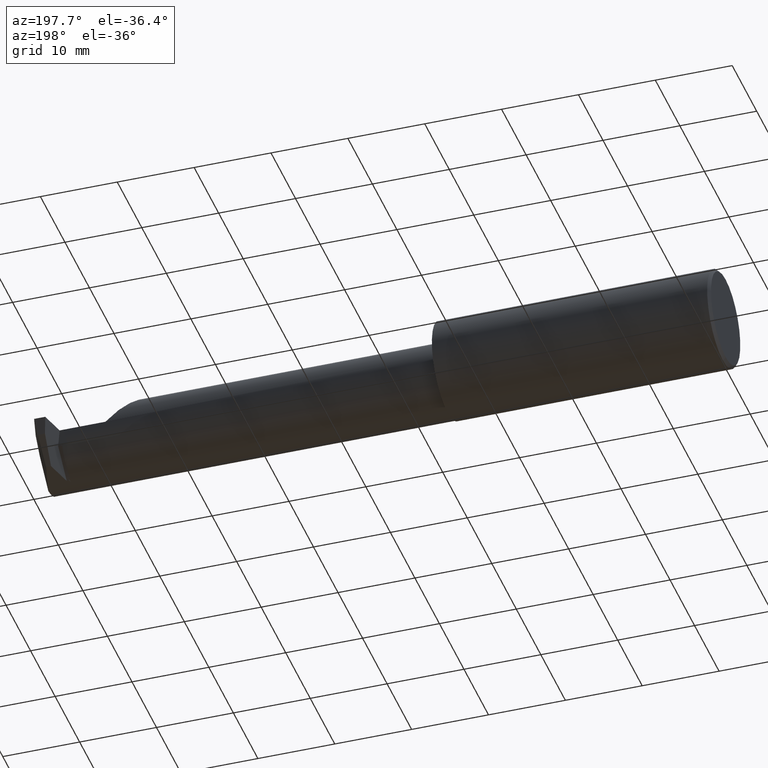
[diagram: clean part render]
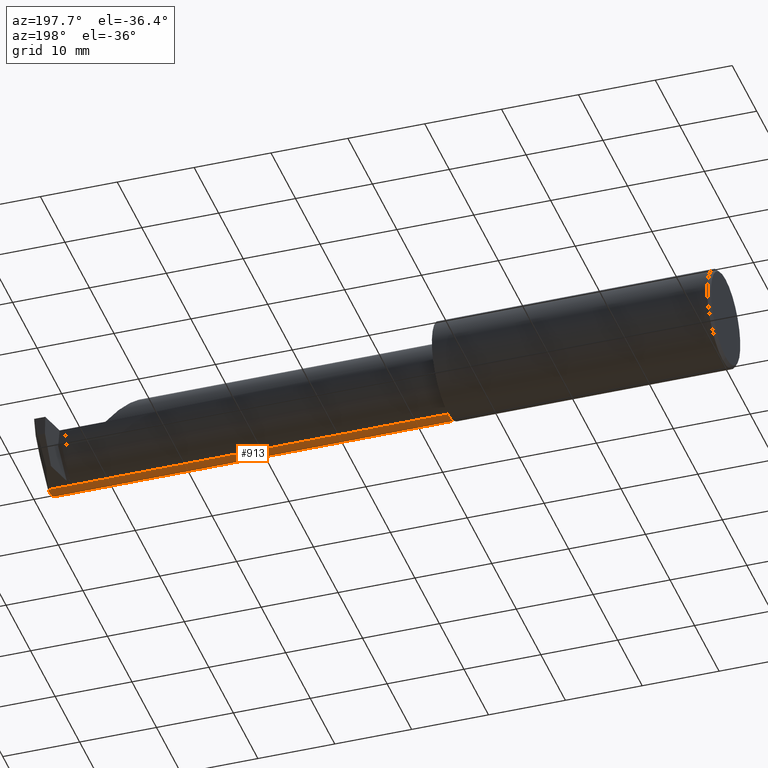
[diagram: same view with one face highlighted and labeled with its STEP entity id]
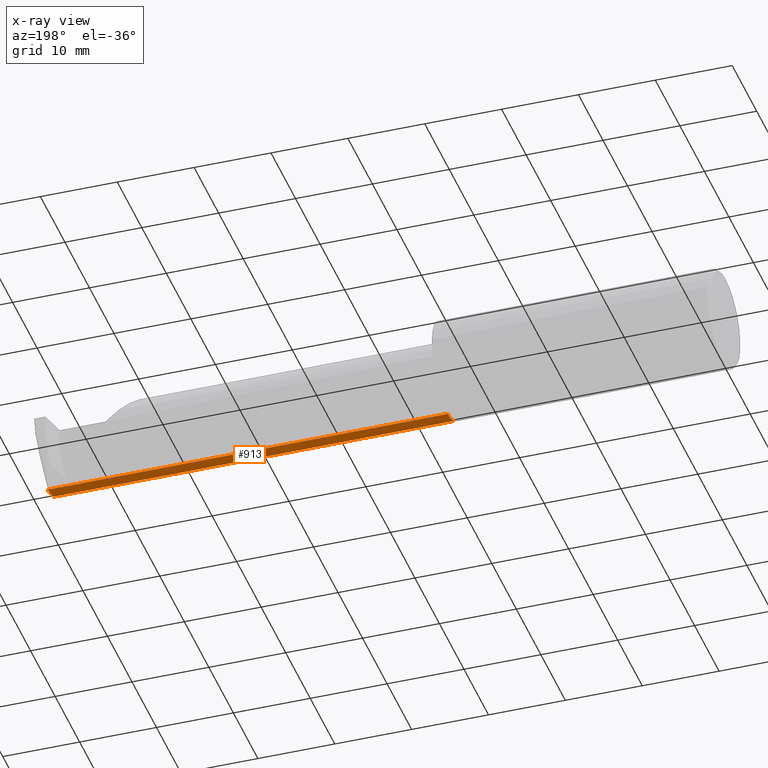
[diagram: x-ray of the same camera — body ghosted, the highlighted face saturated]
A machine part, auxiliary view. The second image highlights one B-rep face of the part: STEP entity #913.
The next image is the same camera in x-ray: the body ghosted, the highlighted face saturated — about 0% of this face is hidden behind the body in this view.
In plain terms, the highlighted cylindrical surface (partial cylindrical patch) has radius 4.953 mm, axis along (-1, -0, -0).
Its self-contained STEP definition (entity closure, byte-faithful):
#2 = AXIS2_PLACEMENT_3D ( 'NONE', #893, #429, #71 ) ;
#13 = CARTESIAN_POINT ( 'NONE',  ( 1.449999999999999512, -0.08485000000000002263, 0.000000000000000000 ) ) ;
#15 = CARTESIAN_POINT ( 'NONE',  ( 3.500000000000000000, -0.08485000000000003650, -0.1950000000000000067 ) ) ;
#26 = LINE ( 'NONE', #15, #502 ) ;
#31 = VERTEX_POINT ( 'NONE', #157 ) ;
#63 = CARTESIAN_POINT ( 'NONE',  ( 3.375000000000000000, -0.08485000000000003650, -0.1950000000000000067 ) ) ;
#71 = DIRECTION ( 'NONE',  ( 0.000000000000000000, 0.000000000000000000, 1.000000000000000000 ) ) ;
#77 = EDGE_CURVE ( 'NONE', #281, #801, #982, .T. ) ;
#93 = DIRECTION ( 'NONE',  ( -1.000000000000000000, -0.000000000000000000, -0.000000000000000000 ) ) ;
#157 = CARTESIAN_POINT ( 'NONE',  ( 1.449999999999999512, -0.08484999999999999487, -0.1950000000000000067 ) ) ;
#172 = DIRECTION ( 'NONE',  ( -1.000000000000000000, -0.000000000000000000, -0.000000000000000000 ) ) ;
#183 = ORIENTED_EDGE ( 'NONE', *, *, #77, .T. ) ;
#195 = CIRCLE ( 'NONE', #2, 0.1950000000000000344 ) ;
#198 = ORIENTED_EDGE ( 'NONE', *, *, #461, .T. ) ;
#227 = EDGE_CURVE ( 'NONE', #575, #803, #26, .T. ) ;
#241 = DIRECTION ( 'NONE',  ( -1.000000000000000000, -0.000000000000000000, -0.000000000000000000 ) ) ;
#279 = CARTESIAN_POINT ( 'NONE',  ( 1.449999999999999512, -0.1862082793164407946, -0.1665878123213411499 ) ) ;
#281 = VERTEX_POINT ( 'NONE', #409 ) ;
#294 = VECTOR ( 'NONE', #869, 39.37007874015748143 ) ;
#298 = CARTESIAN_POINT ( 'NONE',  ( 3.500000000000000000, -0.09664390695084383587, -0.1946430162087374738 ) ) ;
#307 = EDGE_LOOP ( 'NONE', ( #954, #403, #895, #448, #183, #198 ) ) ;
#309 = CYLINDRICAL_SURFACE ( 'NONE', #863, 0.1950000000000000067 ) ;
#311 = CARTESIAN_POINT ( 'NONE',  ( 2.399999999999999911, -0.1862082793164407946, -0.1665878123213411499 ) ) ;
#336 =( BOUNDED_CURVE ( )  B_SPLINE_CURVE ( 3, ( #603, #823, #607, #510 ),
 .UNSPECIFIED., .F., .T. ) 
 B_SPLINE_CURVE_WITH_KNOTS ( ( 4, 4 ),
 ( 0.6981317007977292377, 0.7586502095448539595 ),
 .UNSPECIFIED. ) 
 CURVE ( )  GEOMETRIC_REPRESENTATION_ITEM ( )  RATIONAL_B_SPLINE_CURVE ( ( 1.000000000000000000, 0.9996948157954445024, 0.9996948157954445024, 1.000000000000000000 ) ) 
 REPRESENTATION_ITEM ( '' )  );
#347 = VERTEX_POINT ( 'NONE', #298 ) ;
#382 = CARTESIAN_POINT ( 'NONE',  ( 1.424999999999999600, -0.08485000000000002263, 0.000000000000000000 ) ) ;
#403 = ORIENTED_EDGE ( 'NONE', *, *, #227, .F. ) ;
#404 = CIRCLE ( 'NONE', #736, 0.1950000000000000067 ) ;
#409 = CARTESIAN_POINT ( 'NONE',  ( 3.500000000000000000, -0.1862082793164407113, -0.1665878123213411777 ) ) ;
#429 = DIRECTION ( 'NONE',  ( 1.000000000000000000, -0.000000000000000000, -0.000000000000000000 ) ) ;
#448 = ORIENTED_EDGE ( 'NONE', *, *, #771, .F. ) ;
#460 = DIRECTION ( 'NONE',  ( 1.000000000000000000, 0.000000000000000000, 0.000000000000000000 ) ) ;
#461 = EDGE_CURVE ( 'NONE', #801, #31, #404, .T. ) ;
#493 = CARTESIAN_POINT ( 'NONE',  ( 3.496839862858534431, -0.08485000000000003650, -0.1950000000000000067 ) ) ;
#502 = VECTOR ( 'NONE', #172, 39.37007874015748143 ) ;
#510 = CARTESIAN_POINT ( 'NONE',  ( 3.500000000000000000, -0.09664390695084383587, -0.1946430162087374738 ) ) ;
#575 = VERTEX_POINT ( 'NONE', #493 ) ;
#603 = CARTESIAN_POINT ( 'NONE',  ( 3.496839862858534431, -0.08485000000000003650, -0.1950000000000000067 ) ) ;
#607 = CARTESIAN_POINT ( 'NONE',  ( 3.498911043542018096, -0.09271680594008248344, -0.1948809690765548330 ) ) ;
#615 = EDGE_CURVE ( 'NONE', #803, #31, #861, .T. ) ;
#729 = EDGE_CURVE ( 'NONE', #575, #347, #336, .T. ) ;
#736 = AXIS2_PLACEMENT_3D ( 'NONE', #13, #460, #928 ) ;
#771 = EDGE_CURVE ( 'NONE', #281, #347, #195, .T. ) ;
#793 = CARTESIAN_POINT ( 'NONE',  ( 1.424999999999999600, -0.08484999999999999487, -0.1950000000000000067 ) ) ;
#801 = VERTEX_POINT ( 'NONE', #279 ) ;
#803 = VERTEX_POINT ( 'NONE', #63 ) ;
#823 = CARTESIAN_POINT ( 'NONE',  ( 3.497857342922077617, -0.08878430348550095386, -0.1949999999999999789 ) ) ;
#834 = FACE_OUTER_BOUND ( 'NONE', #307, .T. ) ;
#843 = VECTOR ( 'NONE', #241, 39.37007874015748143 ) ;
#861 = LINE ( 'NONE', #793, #294 ) ;
#863 = AXIS2_PLACEMENT_3D ( 'NONE', #382, #93, #980 ) ;
#869 = DIRECTION ( 'NONE',  ( -1.000000000000000000, -0.000000000000000000, -0.000000000000000000 ) ) ;
#893 = CARTESIAN_POINT ( 'NONE',  ( 3.500000000000000000, -0.08485000000000002263, 0.000000000000000000 ) ) ;
#895 = ORIENTED_EDGE ( 'NONE', *, *, #729, .T. ) ;
#913 = ADVANCED_FACE ( 'NONE', ( #834 ), #309, .T. ) ;
#928 = DIRECTION ( 'NONE',  ( 0.000000000000000000, 0.000000000000000000, -1.000000000000000000 ) ) ;
#954 = ORIENTED_EDGE ( 'NONE', *, *, #615, .F. ) ;
#980 = DIRECTION ( 'NONE',  ( 0.000000000000000000, 0.000000000000000000, 1.000000000000000000 ) ) ;
#982 = LINE ( 'NONE', #311, #843 ) ;